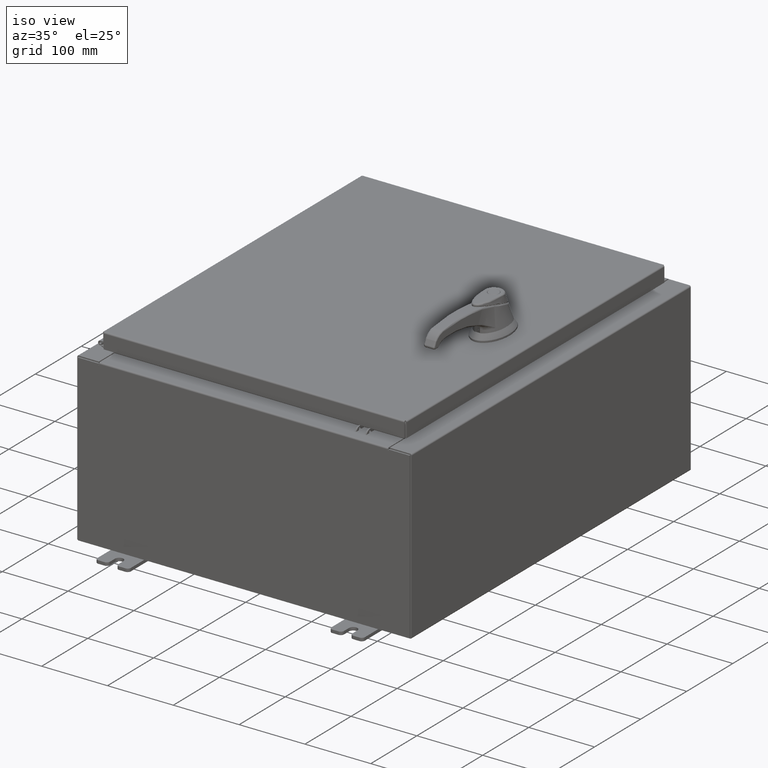
[diagram: clean part render]
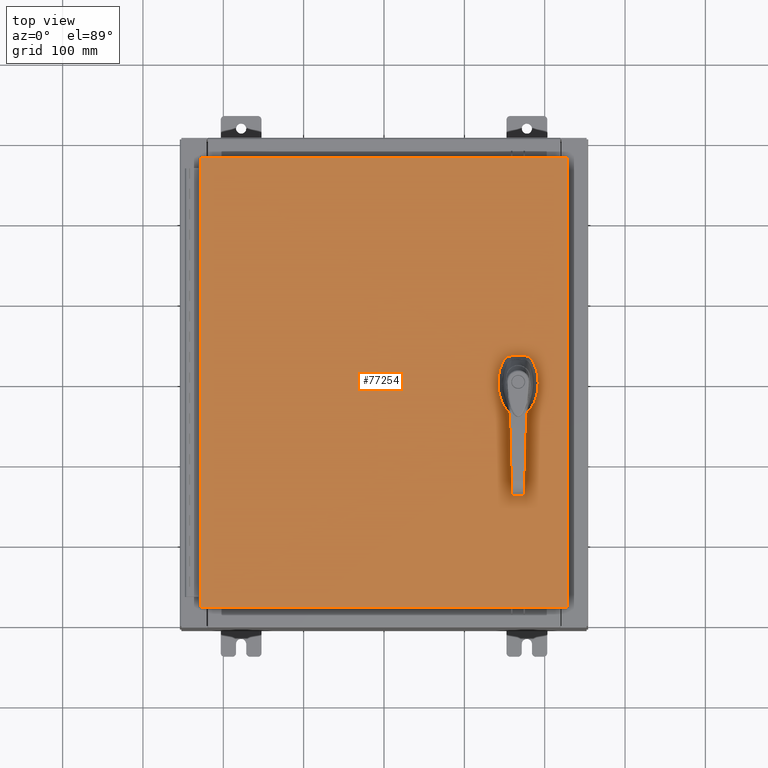
[diagram: tour spotlight — one face highlighted and labeled with its STEP entity id]
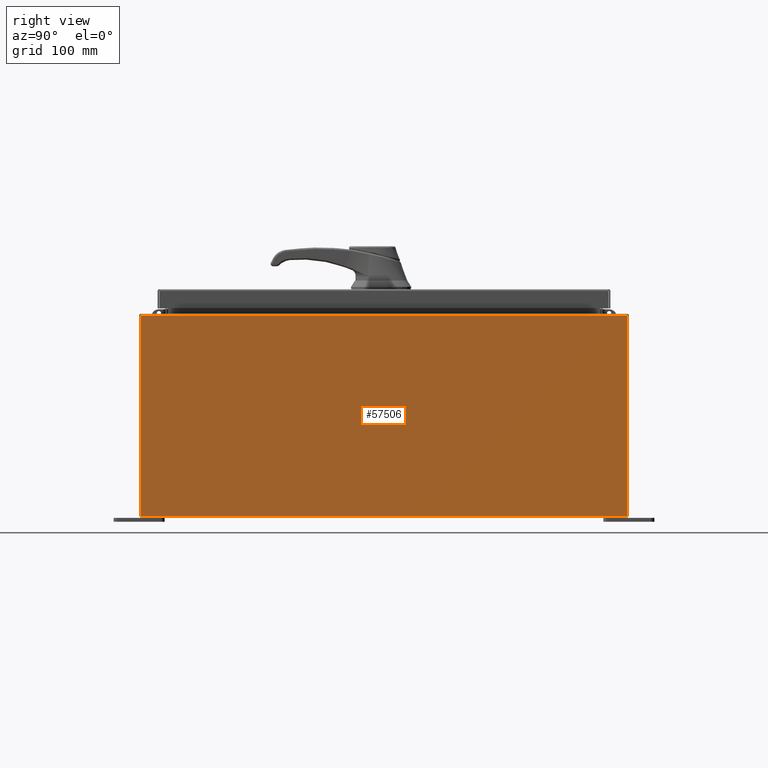
[diagram: tour spotlight — one face highlighted and labeled with its STEP entity id]
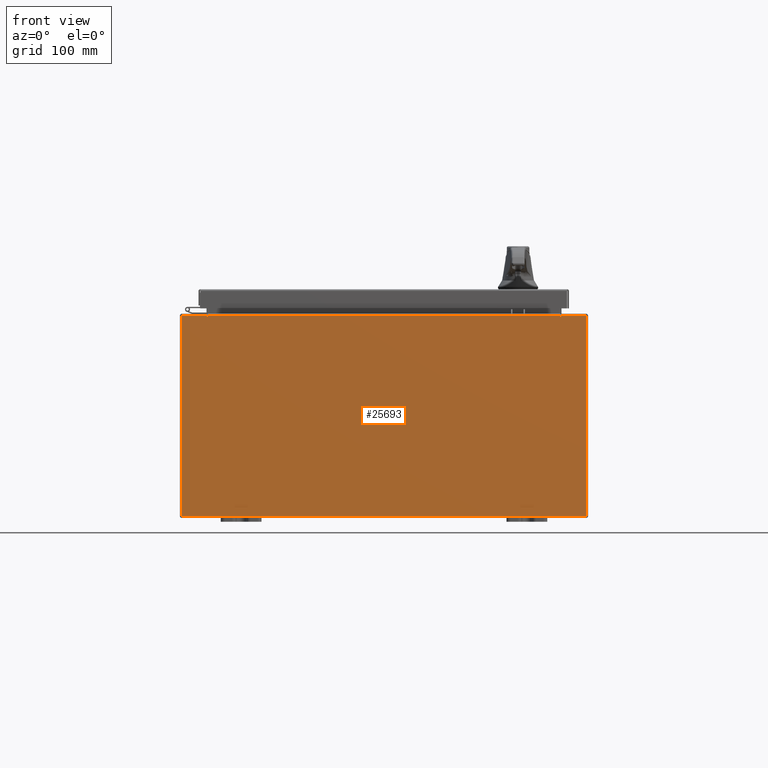
[diagram: tour spotlight — one face highlighted and labeled with its STEP entity id]
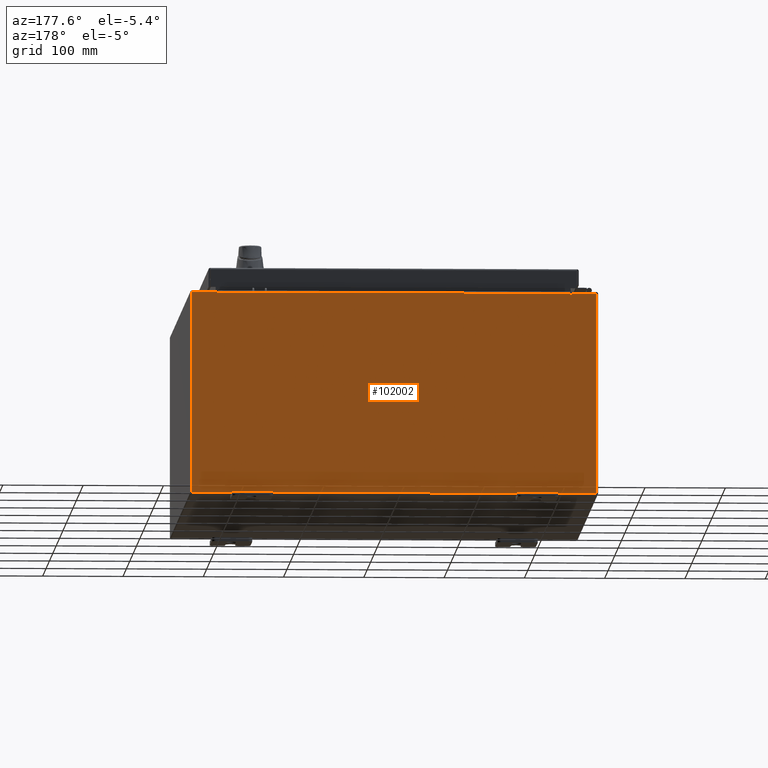
[diagram: tour spotlight — one face highlighted and labeled with its STEP entity id]
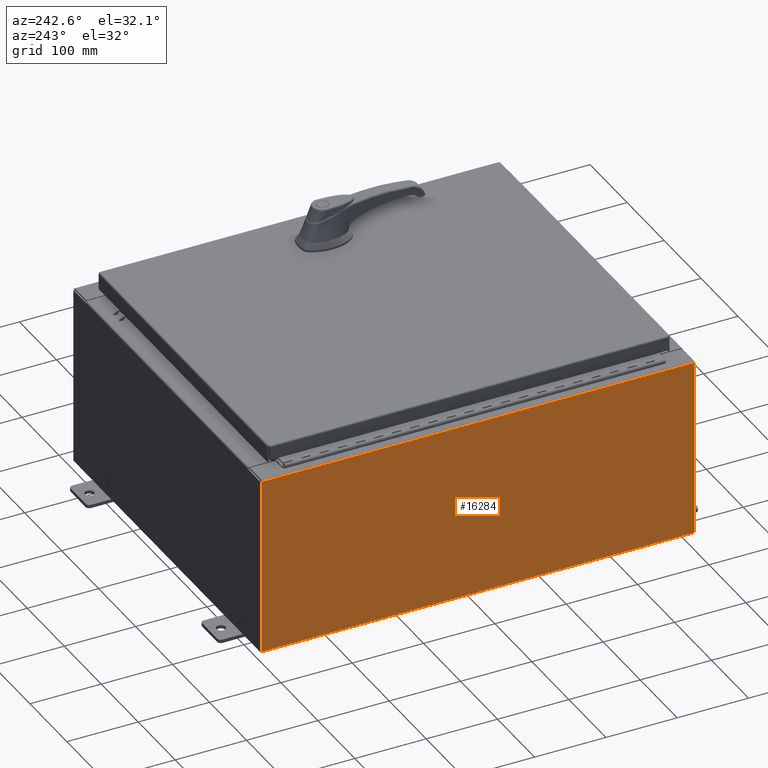
[diagram: tour spotlight — one face highlighted and labeled with its STEP entity id]
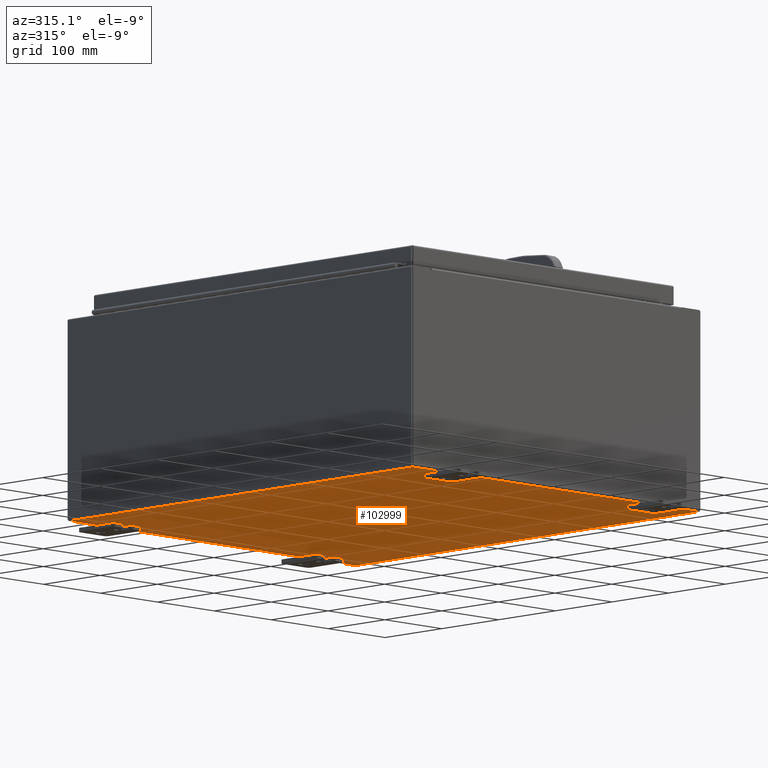
[diagram: tour spotlight — one face highlighted and labeled with its STEP entity id]
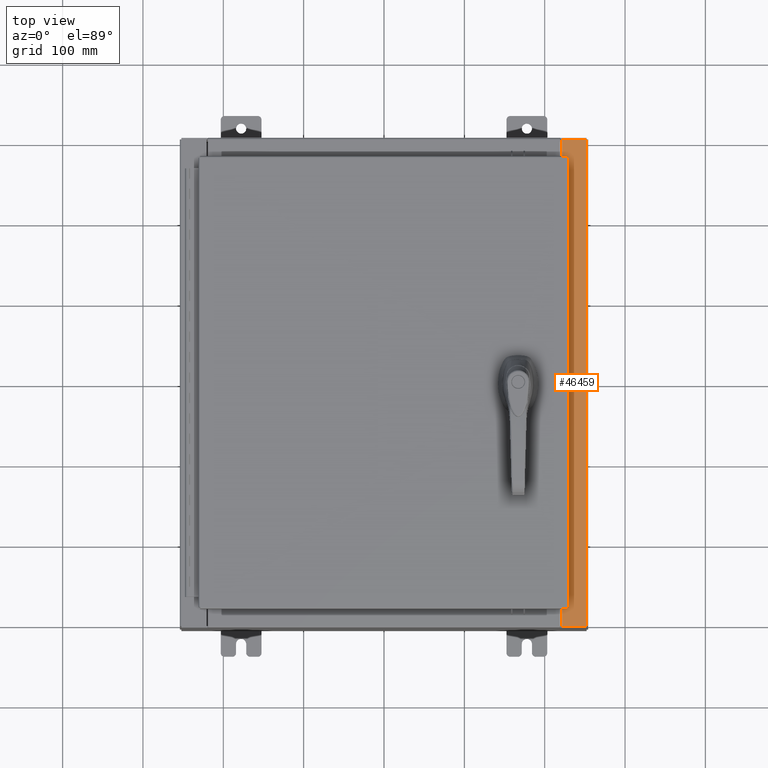
[diagram: tour spotlight — one face highlighted and labeled with its STEP entity id]
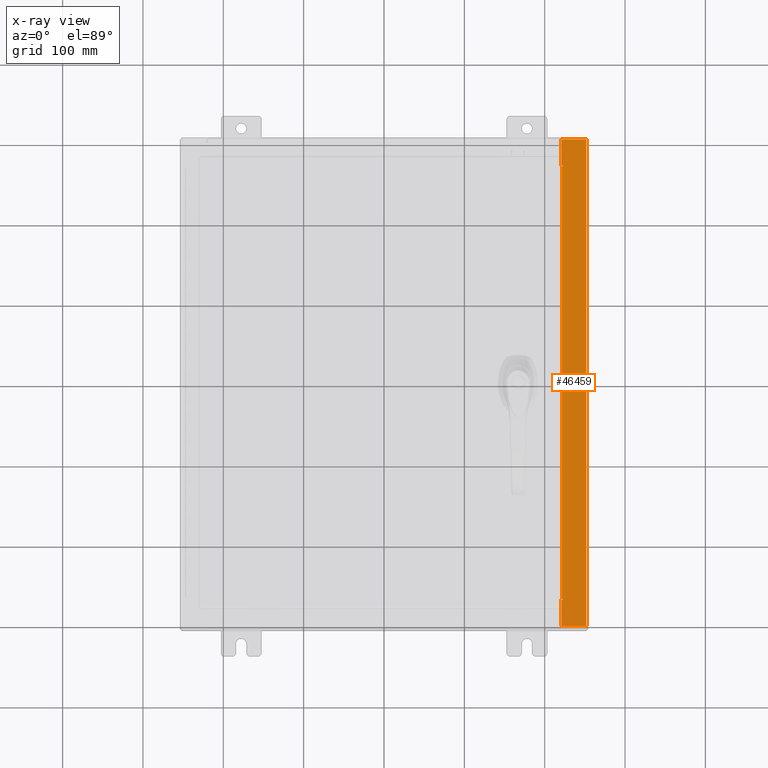
[diagram: x-ray of the same camera — body ghosted, this tour face saturated]
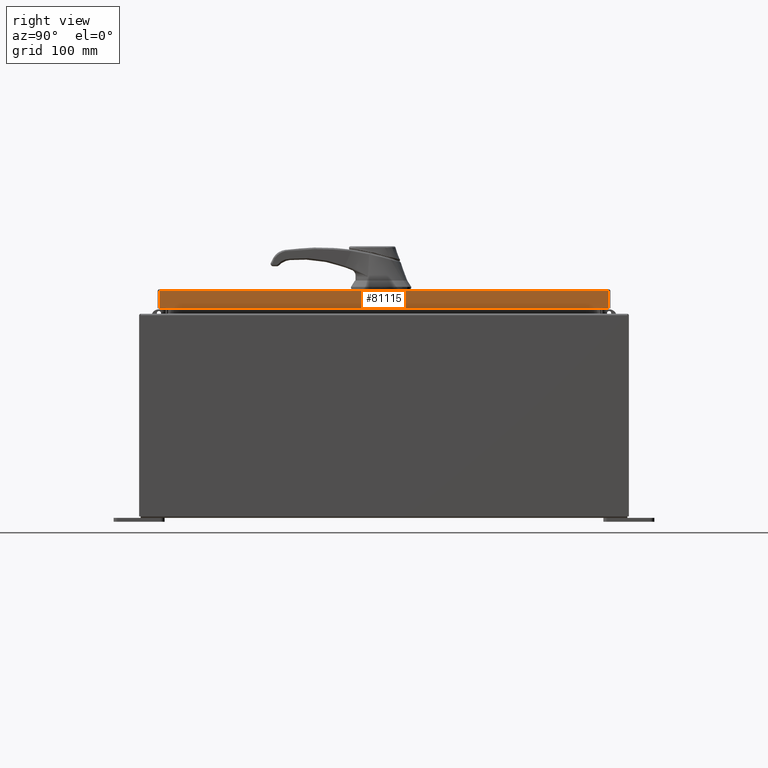
[diagram: tour spotlight — one face highlighted and labeled with its STEP entity id]
A machine part: a face-by-face anatomy tour. The part has 2412 B-rep faces; the first image is the clean iso view, then the 8 largest visible faces are spotlighted one at a time (largest first), each with its STEP entity span.

Face 1 — top view, entity #77254. In plain terms, the highlighted planar face has unit normal (0, 0, -1).
Definition (entity closure, byte-faithful):
#35 = DIRECTION ( 'NONE',  ( 1.000000000000000000, 0.0000000000000000000, 0.0000000000000000000 ) ) ;
#329 = CIRCLE ( 'NONE', #53628, 0.4499999999999156900 ) ;
#671 = EDGE_CURVE ( 'NONE', #4082, #47162, #64494, .T. ) ;
#3072 = ORIENTED_EDGE ( 'NONE', *, *, #59190, .F. ) ;
#4082 = VERTEX_POINT ( 'NONE', #43702 ) ;
#5773 = CARTESIAN_POINT ( 'NONE',  ( 6.377772629243688500, 0.4029999999999252000, 0.0000000000000000000 ) ) ;
#5911 = CARTESIAN_POINT ( 'NONE',  ( 6.749499999999998500, -1.338000000000000100, 0.0000000000000000000 ) ) ;
#7752 = EDGE_CURVE ( 'NONE', #74062, #84587, #53035, .T. ) ;
#8750 = DIRECTION ( 'NONE',  ( -1.000000000000000000, 0.0000000000000000000, 0.0000000000000000000 ) ) ;
#9817 = DIRECTION ( 'NONE',  ( 1.000000000000000000, 0.0000000000000000000, 0.0000000000000000000 ) ) ;
#9964 = CARTESIAN_POINT ( 'NONE',  ( 6.577999999999998500, -1.338000000000000100, 0.0000000000000000000 ) ) ;
#10361 = VECTOR ( 'NONE', #20219, 39.37007874015748100 ) ;
#11484 = VECTOR ( 'NONE', #8750, 39.37007874015748100 ) ;
#11753 = ORIENTED_EDGE ( 'NONE', *, *, #97226, .T. ) ;
#12546 = DIRECTION ( 'NONE',  ( 0.0000000000000000000, 1.000000000000000000, 0.0000000000000000000 ) ) ;
#12658 = VECTOR ( 'NONE', #27191, 39.37007874015748100 ) ;
#13986 = EDGE_LOOP ( 'NONE', ( #11753, #92557, #30170, #97255, #29925, #59812, #25730, #43726 ) ) ;
#14292 = VERTEX_POINT ( 'NONE', #17845 ) ;
#15350 = LINE ( 'NONE', #70741, #12658 ) ;
#17845 = CARTESIAN_POINT ( 'NONE',  ( 6.406499999999998500, -1.338000000000000100, 0.0000000000000000000 ) ) ;
#18510 = VERTEX_POINT ( 'NONE', #29037 ) ;
#18661 = DIRECTION ( 'NONE',  ( 1.000000000000000000, 0.0000000000000000000, 0.0000000000000000000 ) ) ;
#18869 = EDGE_CURVE ( 'NONE', #34440, #18510, #76767, .T. ) ;
#19389 = VECTOR ( 'NONE', #81176, 39.37007874015748100 ) ;
#20219 = DIRECTION ( 'NONE',  ( 0.0000000000000000000, -1.000000000000000000, 0.0000000000000000000 ) ) ;
#20584 = CARTESIAN_POINT ( 'NONE',  ( -8.990299999999999500, 11.00630000000000100, -2.048885995248197400E-016 ) ) ;
#20913 = VERTEX_POINT ( 'NONE', #43452 ) ;
#22100 = VERTEX_POINT ( 'NONE', #102877 ) ;
#22327 = EDGE_CURVE ( 'NONE', #105996, #111322, #65459, .T. ) ;
#22703 = CARTESIAN_POINT ( 'NONE',  ( 6.175000000000072700, 0.2002273707563079800, 0.0000000000000000000 ) ) ;
#22837 = ORIENTED_EDGE ( 'NONE', *, *, #18869, .T. ) ;
#23732 = AXIS2_PLACEMENT_3D ( 'NONE', #35970, #105298, #53369 ) ;
#24660 = CIRCLE ( 'NONE', #101564, 0.1715000000000000700 ) ;
#24997 = VERTEX_POINT ( 'NONE', #65575 ) ;
#25730 = ORIENTED_EDGE ( 'NONE', *, *, #48371, .F. ) ;
#27191 = DIRECTION ( 'NONE',  ( 0.0000000000000000000, -1.000000000000000000, 0.0000000000000000000 ) ) ;
#29037 = CARTESIAN_POINT ( 'NONE',  ( 8.990299999999997700, -11.00630000000000000, -2.219626494852214000E-016 ) ) ;
#29925 = ORIENTED_EDGE ( 'NONE', *, *, #22327, .F. ) ;
#30170 = ORIENTED_EDGE ( 'NONE', *, *, #78289, .F. ) ;
#30302 = FACE_OUTER_BOUND ( 'NONE', #57434, .T. ) ;
#32629 = EDGE_CURVE ( 'NONE', #18510, #24997, #54844, .T. ) ;
#33025 = DIRECTION ( 'NONE',  ( -0.0000000000000000000, 0.0000000000000000000, 1.000000000000000000 ) ) ;
#33143 = ORIENTED_EDGE ( 'NONE', *, *, #92904, .T. ) ;
#34329 = CARTESIAN_POINT ( 'NONE',  ( 6.577999999999998500, 0.0000000000000000000, 0.0000000000000000000 ) ) ;
#34440 = VERTEX_POINT ( 'NONE', #44446 ) ;
#34564 = VECTOR ( 'NONE', #12546, 39.37007874015748100 ) ;
#35102 = CIRCLE ( 'NONE', #75811, 0.1715000000000000700 ) ;
#35650 = CARTESIAN_POINT ( 'NONE',  ( 6.577999999999998500, -1.338000000000000100, 0.0000000000000000000 ) ) ;
#35970 = CARTESIAN_POINT ( 'NONE',  ( 0.0000000000000000000, 0.0000000000000000000, 0.0000000000000000000 ) ) ;
#37944 = DIRECTION ( 'NONE',  ( -0.0000000000000000000, 0.0000000000000000000, 1.000000000000000000 ) ) ;
#38689 = ORIENTED_EDGE ( 'NONE', *, *, #32629, .T. ) ;
#39657 = LINE ( 'NONE', #45626, #108763 ) ;
#41473 = AXIS2_PLACEMENT_3D ( 'NONE', #65270, #33025, #9817 ) ;
#41973 = CARTESIAN_POINT ( 'NONE',  ( 6.778227370756308500, 0.4029999999999252000, 0.0000000000000000000 ) ) ;
#43053 = DIRECTION ( 'NONE',  ( 1.000000000000000000, 0.0000000000000000000, 0.0000000000000000000 ) ) ;
#43452 = CARTESIAN_POINT ( 'NONE',  ( 6.377772629243688500, -0.4029999999999252000, 0.0000000000000000000 ) ) ;
#43702 = CARTESIAN_POINT ( 'NONE',  ( 6.778227370756308500, -0.4029999999999252000, 0.0000000000000000000 ) ) ;
#43726 = ORIENTED_EDGE ( 'NONE', *, *, #7752, .F. ) ;
#44350 = DIRECTION ( 'NONE',  ( 1.000000000000000000, 0.0000000000000000000, 0.0000000000000000000 ) ) ;
#44446 = CARTESIAN_POINT ( 'NONE',  ( -8.990300000000001300, -11.00630000000000100, 8.878505979408856000E-016 ) ) ;
#45626 = CARTESIAN_POINT ( 'NONE',  ( 0.0000000000000000000, -0.4029999999999252000, 0.0000000000000000000 ) ) ;
#47162 = VERTEX_POINT ( 'NONE', #104127 ) ;
#48371 = EDGE_CURVE ( 'NONE', #84587, #61767, #80604, .T. ) ;
#48386 = VECTOR ( 'NONE', #59909, 39.37007874015748100 ) ;
#51403 = EDGE_CURVE ( 'NONE', #111322, #20913, #61572, .T. ) ;
#51907 = DIRECTION ( 'NONE',  ( -0.0000000000000000000, 0.0000000000000000000, 1.000000000000000000 ) ) ;
#53035 = CIRCLE ( 'NONE', #78793, 0.4499999999999156900 ) ;
#53364 = FACE_BOUND ( 'NONE', #13986, .T. ) ;
#53369 = DIRECTION ( 'NONE',  ( -1.000000000000000000, 0.0000000000000000000, -0.0000000000000000000 ) ) ;
#53628 = AXIS2_PLACEMENT_3D ( 'NONE', #89836, #37944, #98594 ) ;
#54677 = CARTESIAN_POINT ( 'NONE',  ( 6.175000000000072700, 0.0000000000000000000, 0.0000000000000000000 ) ) ;
#54844 = LINE ( 'NONE', #97473, #34564 ) ;
#57434 = EDGE_LOOP ( 'NONE', ( #22837, #38689, #33143, #83363 ) ) ;
#58901 = CARTESIAN_POINT ( 'NONE',  ( -8.990300000000001300, -11.00630000000000100, 8.878505979408856000E-016 ) ) ;
#59190 = EDGE_CURVE ( 'NONE', #14292, #77751, #35102, .T. ) ;
#59812 = ORIENTED_EDGE ( 'NONE', *, *, #98546, .F. ) ;
#59909 = DIRECTION ( 'NONE',  ( -1.000000000000000000, -0.0000000000000000000, -0.0000000000000000000 ) ) ;
#61572 = CIRCLE ( 'NONE', #83474, 0.4499999999999156900 ) ;
#61767 = VERTEX_POINT ( 'NONE', #5773 ) ;
#64494 = CIRCLE ( 'NONE', #41473, 0.4499999999999156900 ) ;
#65270 = CARTESIAN_POINT ( 'NONE',  ( 6.577999999999998500, 0.0000000000000000000, 0.0000000000000000000 ) ) ;
#65459 = LINE ( 'NONE', #54677, #19389 ) ;
#65575 = CARTESIAN_POINT ( 'NONE',  ( 8.990299999999999500, 11.00630000000000000, -2.048885995248197400E-016 ) ) ;
#68801 = LINE ( 'NONE', #111817, #48386 ) ;
#70566 = DIRECTION ( 'NONE',  ( -0.0000000000000000000, 0.0000000000000000000, 1.000000000000000000 ) ) ;
#70741 = CARTESIAN_POINT ( 'NONE',  ( 6.980999999999924400, 0.0000000000000000000, 0.0000000000000000000 ) ) ;
#74062 = VERTEX_POINT ( 'NONE', #74370 ) ;
#74370 = CARTESIAN_POINT ( 'NONE',  ( 6.980999999999924400, 0.2002273707563080300, 0.0000000000000000000 ) ) ;
#75811 = AXIS2_PLACEMENT_3D ( 'NONE', #9964, #70566, #18661 ) ;
#76767 = LINE ( 'NONE', #58901, #94438 ) ;
#77254 = ADVANCED_FACE ( 'NONE', ( #99439, #30302, #53364 ), #79120, .F. ) ;
#77751 = VERTEX_POINT ( 'NONE', #5911 ) ;
#78289 = EDGE_CURVE ( 'NONE', #20913, #4082, #39657, .T. ) ;
#78793 = AXIS2_PLACEMENT_3D ( 'NONE', #103832, #51907, #35 ) ;
#79120 = PLANE ( 'NONE',  #23732 ) ;
#80571 = EDGE_CURVE ( 'NONE', #77751, #14292, #24660, .T. ) ;
#80604 = LINE ( 'NONE', #94779, #11484 ) ;
#81176 = DIRECTION ( 'NONE',  ( 0.0000000000000000000, -1.000000000000000000, 0.0000000000000000000 ) ) ;
#81835 = ORIENTED_EDGE ( 'NONE', *, *, #80571, .F. ) ;
#83363 = ORIENTED_EDGE ( 'NONE', *, *, #87092, .T. ) ;
#83474 = AXIS2_PLACEMENT_3D ( 'NONE', #34329, #94970, #43053 ) ;
#84587 = VERTEX_POINT ( 'NONE', #41973 ) ;
#87092 = EDGE_CURVE ( 'NONE', #22100, #34440, #99813, .T. ) ;
#89447 = CARTESIAN_POINT ( 'NONE',  ( 6.175000000000072700, -0.2002273707563079800, 0.0000000000000000000 ) ) ;
#89836 = CARTESIAN_POINT ( 'NONE',  ( 6.577999999999998500, 0.0000000000000000000, 0.0000000000000000000 ) ) ;
#92557 = ORIENTED_EDGE ( 'NONE', *, *, #671, .F. ) ;
#92904 = EDGE_CURVE ( 'NONE', #24997, #22100, #68801, .T. ) ;
#93410 = DIRECTION ( 'NONE',  ( 1.000000000000000000, -0.0000000000000000000, -0.0000000000000000000 ) ) ;
#94438 = VECTOR ( 'NONE', #93410, 39.37007874015748100 ) ;
#94779 = CARTESIAN_POINT ( 'NONE',  ( 0.0000000000000000000, 0.4029999999999252000, 0.0000000000000000000 ) ) ;
#94970 = DIRECTION ( 'NONE',  ( -0.0000000000000000000, 0.0000000000000000000, 1.000000000000000000 ) ) ;
#96287 = DIRECTION ( 'NONE',  ( -0.0000000000000000000, 0.0000000000000000000, 1.000000000000000000 ) ) ;
#97226 = EDGE_CURVE ( 'NONE', #74062, #47162, #15350, .T. ) ;
#97255 = ORIENTED_EDGE ( 'NONE', *, *, #51403, .F. ) ;
#97473 = CARTESIAN_POINT ( 'NONE',  ( 8.990299999999997700, -11.00630000000000000, -2.219626494852214000E-016 ) ) ;
#97554 = DIRECTION ( 'NONE',  ( 1.000000000000000000, 0.0000000000000000000, 0.0000000000000000000 ) ) ;
#98546 = EDGE_CURVE ( 'NONE', #61767, #105996, #329, .T. ) ;
#98594 = DIRECTION ( 'NONE',  ( 1.000000000000000000, 0.0000000000000000000, 0.0000000000000000000 ) ) ;
#99439 = FACE_BOUND ( 'NONE', #108105, .T. ) ;
#99813 = LINE ( 'NONE', #20584, #10361 ) ;
#101564 = AXIS2_PLACEMENT_3D ( 'NONE', #35650, #96287, #44350 ) ;
#102877 = CARTESIAN_POINT ( 'NONE',  ( -8.990299999999999500, 11.00630000000000100, -2.048885995248197400E-016 ) ) ;
#103832 = CARTESIAN_POINT ( 'NONE',  ( 6.577999999999998500, 0.0000000000000000000, 0.0000000000000000000 ) ) ;
#104127 = CARTESIAN_POINT ( 'NONE',  ( 6.980999999999924400, -0.2002273707563079800, 0.0000000000000000000 ) ) ;
#105298 = DIRECTION ( 'NONE',  ( 0.0000000000000000000, 0.0000000000000000000, -1.000000000000000000 ) ) ;
#105996 = VERTEX_POINT ( 'NONE', #22703 ) ;
#108105 = EDGE_LOOP ( 'NONE', ( #81835, #3072 ) ) ;
#108763 = VECTOR ( 'NONE', #97554, 39.37007874015748100 ) ;
#111322 = VERTEX_POINT ( 'NONE', #89447 ) ;
#111817 = CARTESIAN_POINT ( 'NONE',  ( 8.990299999999999500, 11.00630000000000000, -2.048885995248197400E-016 ) ) ;

Face 2 — right view, entity #57506. In plain terms, the highlighted planar face has unit normal (-1, 0, 0).
Definition (entity closure, byte-faithful):
#311 = VECTOR ( 'NONE', #20708, 39.37007874015748100 ) ;
#4043 = CARTESIAN_POINT ( 'NONE',  ( 10.00000000000000000, 11.92529999999999800, 0.01299999999999984700 ) ) ;
#6264 = CARTESIAN_POINT ( 'NONE',  ( 10.00000000000000000, 0.0000000000000000000, -3.549164226462045900E-014 ) ) ;
#20708 = DIRECTION ( 'NONE',  ( -0.0000000000000000000, -1.000000000000000000, -0.0000000000000000000 ) ) ;
#23564 = VECTOR ( 'NONE', #69394, 39.37007874015748100 ) ;
#24222 = CARTESIAN_POINT ( 'NONE',  ( 10.00000000000000000, -11.92530000000000000, 0.01299999999999984700 ) ) ;
#29381 = ORIENTED_EDGE ( 'NONE', *, *, #35046, .T. ) ;
#32430 = PLANE ( 'NONE',  #35887 ) ;
#32556 = FACE_OUTER_BOUND ( 'NONE', #101403, .T. ) ;
#34530 = CARTESIAN_POINT ( 'NONE',  ( 10.00000000000000000, 11.92530000000000000, -3.286577851208143900E-014 ) ) ;
#35046 = EDGE_CURVE ( 'NONE', #106304, #61510, #49308, .T. ) ;
#35887 = AXIS2_PLACEMENT_3D ( 'NONE', #6264, #41124, #101746 ) ;
#38835 = EDGE_CURVE ( 'NONE', #50610, #102196, #70944, .T. ) ;
#41124 = DIRECTION ( 'NONE',  ( -1.000000000000000000, 0.0000000000000000000, 3.523082860860887800E-015 ) ) ;
#43656 = LINE ( 'NONE', #24222, #311 ) ;
#43986 = LINE ( 'NONE', #45503, #104993 ) ;
#45503 = CARTESIAN_POINT ( 'NONE',  ( 10.00000000000003600, 11.92530000000000000, 9.837599999999994800 ) ) ;
#49308 = LINE ( 'NONE', #34530, #23564 ) ;
#50610 = VERTEX_POINT ( 'NONE', #102289 ) ;
#55394 = EDGE_CURVE ( 'NONE', #106304, #102196, #43656, .T. ) ;
#57506 = ADVANCED_FACE ( 'NONE', ( #32556 ), #32430, .F. ) ;
#61510 = VERTEX_POINT ( 'NONE', #97921 ) ;
#62781 = VECTOR ( 'NONE', #106353, 39.37007874015748100 ) ;
#64045 = EDGE_CURVE ( 'NONE', #61510, #50610, #43986, .T. ) ;
#69394 = DIRECTION ( 'NONE',  ( 3.523082860860888200E-015, -2.201926788038055100E-016, 1.000000000000000000 ) ) ;
#70944 = LINE ( 'NONE', #88932, #62781 ) ;
#88932 = CARTESIAN_POINT ( 'NONE',  ( 10.00000000000000000, -11.92530000000000000, -3.549164226462045900E-014 ) ) ;
#97921 = CARTESIAN_POINT ( 'NONE',  ( 10.00000000000003600, 11.92529999999999800, 9.837599999999994800 ) ) ;
#99590 = ORIENTED_EDGE ( 'NONE', *, *, #64045, .T. ) ;
#100924 = CARTESIAN_POINT ( 'NONE',  ( 10.00000000000000000, -11.92530000000000000, 0.01299999999999984300 ) ) ;
#101403 = EDGE_LOOP ( 'NONE', ( #99590, #102232, #107310, #29381 ) ) ;
#101746 = DIRECTION ( 'NONE',  ( 3.523082860860887800E-015, 0.0000000000000000000, 1.000000000000000000 ) ) ;
#102196 = VERTEX_POINT ( 'NONE', #100924 ) ;
#102232 = ORIENTED_EDGE ( 'NONE', *, *, #38835, .T. ) ;
#102289 = CARTESIAN_POINT ( 'NONE',  ( 10.00000000000003600, -11.92530000000000000, 9.837600000000001900 ) ) ;
#104993 = VECTOR ( 'NONE', #106127, 39.37007874015748100 ) ;
#106127 = DIRECTION ( 'NONE',  ( -0.0000000000000000000, -1.000000000000000000, -0.0000000000000000000 ) ) ;
#106304 = VERTEX_POINT ( 'NONE', #4043 ) ;
#106353 = DIRECTION ( 'NONE',  ( -3.523082860860888200E-015, 0.0000000000000000000, -1.000000000000000000 ) ) ;
#107310 = ORIENTED_EDGE ( 'NONE', *, *, #55394, .F. ) ;

Face 3 — front view, entity #25693. In plain terms, the highlighted planar face has unit normal (-0, 1, -0).
Definition (entity closure, byte-faithful):
#3022 = EDGE_CURVE ( 'NONE', #18241, #20974, #103577, .T. ) ;
#3910 = EDGE_CURVE ( 'NONE', #9647, #93030, #13933, .T. ) ;
#4269 = CARTESIAN_POINT ( 'NONE',  ( -9.925300000000000000, 0.0000000000000000000, 4.925300000000000000 ) ) ;
#4590 = DIRECTION ( 'NONE',  ( -6.510859170600007400E-014, 0.0000000000000000000, -1.000000000000000000 ) ) ;
#4808 = DIRECTION ( 'NONE',  ( 0.0000000000000000000, 0.0000000000000000000, -1.000000000000000000 ) ) ;
#5575 = PLANE ( 'NONE',  #17502 ) ;
#7380 = CARTESIAN_POINT ( 'NONE',  ( 9.925300000000000000, 0.0000000000000000000, 4.925300000000000000 ) ) ;
#7425 = CARTESIAN_POINT ( 'NONE',  ( -8.637199999999996400, -0.0000000000000000000, 0.0000000000000000000 ) ) ;
#8663 = CARTESIAN_POINT ( 'NONE',  ( -8.637199999999996400, -7.171100983368691200E-016, 4.912300000000000100 ) ) ;
#8973 = ORIENTED_EDGE ( 'NONE', *, *, #99301, .T. ) ;
#9647 = VERTEX_POINT ( 'NONE', #91687 ) ;
#10497 = VERTEX_POINT ( 'NONE', #76220 ) ;
#12229 = DIRECTION ( 'NONE',  ( -0.0000000000000000000, -0.0000000000000000000, 1.000000000000000000 ) ) ;
#12452 = DIRECTION ( 'NONE',  ( 1.000000000000000000, 0.0000000000000000000, 0.0000000000000000000 ) ) ;
#13324 = LINE ( 'NONE', #4269, #39106 ) ;
#13933 = LINE ( 'NONE', #20983, #103468 ) ;
#14279 = DIRECTION ( 'NONE',  ( 0.0000000000000000000, -0.0000000000000000000, -1.000000000000000000 ) ) ;
#15303 = CARTESIAN_POINT ( 'NONE',  ( -9.925300000000000000, 0.0000000000000000000, 4.925300000000000000 ) ) ;
#17502 = AXIS2_PLACEMENT_3D ( 'NONE', #108993, #66196, #14279 ) ;
#18241 = VERTEX_POINT ( 'NONE', #25267 ) ;
#20974 = VERTEX_POINT ( 'NONE', #87404 ) ;
#20983 = CARTESIAN_POINT ( 'NONE',  ( 8.637200000000000000, 0.0000000000000000000, 0.0000000000000000000 ) ) ;
#21153 = ORIENTED_EDGE ( 'NONE', *, *, #49458, .F. ) ;
#21269 = CARTESIAN_POINT ( 'NONE',  ( -9.925300000000000000, 0.0000000000000000000, 4.925300000000000000 ) ) ;
#21619 = VECTOR ( 'NONE', #75921, 39.37007874015748100 ) ;
#21783 = CARTESIAN_POINT ( 'NONE',  ( 8.655875000000000000, 0.0000000000000000000, 4.874950000000000100 ) ) ;
#23817 = VECTOR ( 'NONE', #104178, 39.37007874015748100 ) ;
#25101 = VECTOR ( 'NONE', #4590, 39.37007874015748100 ) ;
#25267 = CARTESIAN_POINT ( 'NONE',  ( 9.925300000000000000, 0.0000000000000000000, 4.925300000000000000 ) ) ;
#25693 = ADVANCED_FACE ( 'NONE', ( #53023 ), #5575, .F. ) ;
#26683 = VECTOR ( 'NONE', #42263, 39.37007874015748100 ) ;
#27196 = AXIS2_PLACEMENT_3D ( 'NONE', #21783, #82413, #30522 ) ;
#27946 = ORIENTED_EDGE ( 'NONE', *, *, #3910, .F. ) ;
#29276 = EDGE_CURVE ( 'NONE', #34860, #9647, #44424, .T. ) ;
#30522 = DIRECTION ( 'NONE',  ( 0.0000000000000000000, 0.0000000000000000000, -1.000000000000000000 ) ) ;
#31798 = ORIENTED_EDGE ( 'NONE', *, *, #84524, .F. ) ;
#32249 = VERTEX_POINT ( 'NONE', #69289 ) ;
#32527 = CARTESIAN_POINT ( 'NONE',  ( -8.674549999999996400, -0.0000000000000000000, 0.0000000000000000000 ) ) ;
#34860 = VERTEX_POINT ( 'NONE', #39823 ) ;
#34971 = DIRECTION ( 'NONE',  ( 0.0000000000000000000, 0.0000000000000000000, -1.000000000000000000 ) ) ;
#37443 = VERTEX_POINT ( 'NONE', #89942 ) ;
#38062 = EDGE_CURVE ( 'NONE', #10497, #37443, #77786, .T. ) ;
#39073 = EDGE_LOOP ( 'NONE', ( #31798, #89995, #63706, #81802, #27946, #95822, #21153, #8973, #91367, #46994, #64507, #49107 ) ) ;
#39106 = VECTOR ( 'NONE', #12229, 39.37007874015748100 ) ;
#39823 = CARTESIAN_POINT ( 'NONE',  ( 8.674550000000000000, 0.0000000000000000000, 4.874950000000000100 ) ) ;
#42263 = DIRECTION ( 'NONE',  ( 0.0000000000000000000, 0.0000000000000000000, -1.000000000000000000 ) ) ;
#44424 = CIRCLE ( 'NONE', #27196, 0.01867500000000003900 ) ;
#46994 = ORIENTED_EDGE ( 'NONE', *, *, #111902, .T. ) ;
#48937 = CARTESIAN_POINT ( 'NONE',  ( 8.674550000000001800, 0.0000000000000000000, 4.925300000000000000 ) ) ;
#48943 = VECTOR ( 'NONE', #81872, 39.37007874015748100 ) ;
#49107 = ORIENTED_EDGE ( 'NONE', *, *, #83354, .T. ) ;
#49458 = EDGE_CURVE ( 'NONE', #66870, #34860, #50844, .T. ) ;
#49672 = LINE ( 'NONE', #7425, #26683 ) ;
#50844 = LINE ( 'NONE', #108377, #25101 ) ;
#51329 = VECTOR ( 'NONE', #110930, 39.37007874015748100 ) ;
#51708 = LINE ( 'NONE', #21269, #48943 ) ;
#53023 = FACE_OUTER_BOUND ( 'NONE', #39073, .T. ) ;
#53882 = VERTEX_POINT ( 'NONE', #8663 ) ;
#55632 = CARTESIAN_POINT ( 'NONE',  ( -8.637200000000000000, -7.171100983368691200E-016, 4.912300000000000100 ) ) ;
#56708 = DIRECTION ( 'NONE',  ( -0.0000000000000000000, 1.000000000000000000, -0.0000000000000000000 ) ) ;
#62892 = VECTOR ( 'NONE', #34971, 39.37007874015748100 ) ;
#63357 = VECTOR ( 'NONE', #12452, 39.37007874015748100 ) ;
#63706 = ORIENTED_EDGE ( 'NONE', *, *, #86709, .F. ) ;
#64507 = ORIENTED_EDGE ( 'NONE', *, *, #71234, .T. ) ;
#66196 = DIRECTION ( 'NONE',  ( 0.0000000000000000000, -1.000000000000000000, 0.0000000000000000000 ) ) ;
#66870 = VERTEX_POINT ( 'NONE', #48937 ) ;
#69289 = CARTESIAN_POINT ( 'NONE',  ( -8.674549999999996400, 0.0000000000000000000, 4.925300000000000000 ) ) ;
#70084 = CARTESIAN_POINT ( 'NONE',  ( -9.925300000000000000, 0.0000000000000000000, -4.925300000000000000 ) ) ;
#71234 = EDGE_CURVE ( 'NONE', #82317, #71831, #13324, .T. ) ;
#71831 = VERTEX_POINT ( 'NONE', #88200 ) ;
#75921 = DIRECTION ( 'NONE',  ( 1.000000000000000000, 0.0000000000000000000, 0.0000000000000000000 ) ) ;
#76220 = CARTESIAN_POINT ( 'NONE',  ( -8.637199999999996400, -0.0000000000000000000, 4.874950000000000100 ) ) ;
#77075 = LINE ( 'NONE', #32527, #51329 ) ;
#77786 = CIRCLE ( 'NONE', #92264, 0.01867500000000003900 ) ;
#81802 = ORIENTED_EDGE ( 'NONE', *, *, #108413, .T. ) ;
#81872 = DIRECTION ( 'NONE',  ( 1.000000000000000000, 0.0000000000000000000, 0.0000000000000000000 ) ) ;
#82317 = VERTEX_POINT ( 'NONE', #99612 ) ;
#82413 = DIRECTION ( 'NONE',  ( -0.0000000000000000000, 1.000000000000000000, -0.0000000000000000000 ) ) ;
#83354 = EDGE_CURVE ( 'NONE', #71831, #32249, #105685, .T. ) ;
#84524 = EDGE_CURVE ( 'NONE', #37443, #32249, #77075, .T. ) ;
#86425 = LINE ( 'NONE', #55632, #63357 ) ;
#86431 = CARTESIAN_POINT ( 'NONE',  ( 8.637200000000000000, 0.0000000000000000000, 4.912300000000000100 ) ) ;
#86709 = EDGE_CURVE ( 'NONE', #53882, #10497, #49672, .T. ) ;
#87404 = CARTESIAN_POINT ( 'NONE',  ( 9.925300000000000000, 0.0000000000000000000, -4.925300000000000000 ) ) ;
#88200 = CARTESIAN_POINT ( 'NONE',  ( -9.925300000000000000, 0.0000000000000000000, 4.925300000000000000 ) ) ;
#89942 = CARTESIAN_POINT ( 'NONE',  ( -8.674549999999996400, 0.0000000000000000000, 4.874950000000000100 ) ) ;
#89995 = ORIENTED_EDGE ( 'NONE', *, *, #38062, .F. ) ;
#90212 = LINE ( 'NONE', #70084, #23817 ) ;
#91367 = ORIENTED_EDGE ( 'NONE', *, *, #3022, .T. ) ;
#91687 = CARTESIAN_POINT ( 'NONE',  ( 8.637200000000000000, 0.0000000000000000000, 4.874950000000000100 ) ) ;
#92264 = AXIS2_PLACEMENT_3D ( 'NONE', #108589, #56708, #4808 ) ;
#93030 = VERTEX_POINT ( 'NONE', #86431 ) ;
#95822 = ORIENTED_EDGE ( 'NONE', *, *, #29276, .F. ) ;
#99042 = DIRECTION ( 'NONE',  ( 0.0000000000000000000, 0.0000000000000000000, 1.000000000000000000 ) ) ;
#99301 = EDGE_CURVE ( 'NONE', #66870, #18241, #51708, .T. ) ;
#99612 = CARTESIAN_POINT ( 'NONE',  ( -9.925300000000000000, 0.0000000000000000000, -4.925300000000000000 ) ) ;
#103468 = VECTOR ( 'NONE', #99042, 39.37007874015748100 ) ;
#103577 = LINE ( 'NONE', #7380, #62892 ) ;
#104178 = DIRECTION ( 'NONE',  ( -1.000000000000000000, -0.0000000000000000000, -0.0000000000000000000 ) ) ;
#105685 = LINE ( 'NONE', #15303, #21619 ) ;
#108377 = CARTESIAN_POINT ( 'NONE',  ( 8.674549999999683800, -0.0000000000000000000, -5.647877341832623900E-013 ) ) ;
#108413 = EDGE_CURVE ( 'NONE', #53882, #93030, #86425, .T. ) ;
#108589 = CARTESIAN_POINT ( 'NONE',  ( -8.655874999999996400, 0.0000000000000000000, 4.874950000000000100 ) ) ;
#108993 = CARTESIAN_POINT ( 'NONE',  ( 0.0000000000000000000, 0.0000000000000000000, 0.0000000000000000000 ) ) ;
#110930 = DIRECTION ( 'NONE',  ( 0.0000000000000000000, 0.0000000000000000000, 1.000000000000000000 ) ) ;
#111902 = EDGE_CURVE ( 'NONE', #20974, #82317, #90212, .T. ) ;

Face 4 — auxiliary view, entity #102002. In plain terms, the highlighted planar face has unit normal (0, -1, 0).
Definition (entity closure, byte-faithful):
#725 = VECTOR ( 'NONE', #28137, 39.37007874015748100 ) ;
#2314 = VERTEX_POINT ( 'NONE', #71382 ) ;
#3973 = ORIENTED_EDGE ( 'NONE', *, *, #62799, .F. ) ;
#4210 = VERTEX_POINT ( 'NONE', #17089 ) ;
#4289 = VECTOR ( 'NONE', #29985, 39.37007874015748100 ) ;
#6030 = CARTESIAN_POINT ( 'NONE',  ( 8.637200000000000000, 0.0000000000000000000, 4.874950000000000100 ) ) ;
#6697 = CARTESIAN_POINT ( 'NONE',  ( -8.637200000000000000, -7.171100983368691200E-016, 4.912300000000000100 ) ) ;
#6960 = DIRECTION ( 'NONE',  ( 1.000000000000000000, 0.0000000000000000000, 0.0000000000000000000 ) ) ;
#8127 = DIRECTION ( 'NONE',  ( -0.0000000000000000000, 1.000000000000000000, -0.0000000000000000000 ) ) ;
#8499 = EDGE_LOOP ( 'NONE', ( #58909, #56602, #26519, #81944, #3973, #15811, #51832, #21623, #47879, #54963, #91800, #29018 ) ) ;
#9110 = AXIS2_PLACEMENT_3D ( 'NONE', #60044, #8127, #68787 ) ;
#10575 = CIRCLE ( 'NONE', #9110, 0.01867500000000003900 ) ;
#10684 = DIRECTION ( 'NONE',  ( 0.0000000000000000000, 0.0000000000000000000, -1.000000000000000000 ) ) ;
#11581 = VECTOR ( 'NONE', #99885, 39.37007874015748100 ) ;
#13924 = VECTOR ( 'NONE', #108422, 39.37007874015748100 ) ;
#15339 = EDGE_CURVE ( 'NONE', #25754, #100786, #10575, .T. ) ;
#15388 = DIRECTION ( 'NONE',  ( 1.000000000000000000, 0.0000000000000000000, 0.0000000000000000000 ) ) ;
#15811 = ORIENTED_EDGE ( 'NONE', *, *, #42245, .F. ) ;
#17089 = CARTESIAN_POINT ( 'NONE',  ( -9.925300000000000000, 0.0000000000000000000, 4.925300000000000000 ) ) ;
#19169 = DIRECTION ( 'NONE',  ( 0.0000000000000000000, -0.0000000000000000000, -1.000000000000000000 ) ) ;
#19401 = CARTESIAN_POINT ( 'NONE',  ( -9.925300000000000000, 0.0000000000000000000, 4.925300000000000000 ) ) ;
#19425 = VECTOR ( 'NONE', #6960, 39.37007874015748100 ) ;
#20601 = DIRECTION ( 'NONE',  ( -0.0000000000000000000, 1.000000000000000000, -0.0000000000000000000 ) ) ;
#21623 = ORIENTED_EDGE ( 'NONE', *, *, #22442, .T. ) ;
#21801 = CARTESIAN_POINT ( 'NONE',  ( 8.637200000000000000, 0.0000000000000000000, 0.0000000000000000000 ) ) ;
#22110 = LINE ( 'NONE', #67627, #19425 ) ;
#22442 = EDGE_CURVE ( 'NONE', #39931, #89566, #80361, .T. ) ;
#23856 = LINE ( 'NONE', #95219, #90258 ) ;
#24136 = CARTESIAN_POINT ( 'NONE',  ( -8.674549999999996400, 0.0000000000000000000, 4.925300000000000000 ) ) ;
#24190 = CARTESIAN_POINT ( 'NONE',  ( -9.925300000000000000, 0.0000000000000000000, -4.925300000000000000 ) ) ;
#24902 = EDGE_CURVE ( 'NONE', #100786, #64764, #91021, .T. ) ;
#25754 = VERTEX_POINT ( 'NONE', #101432 ) ;
#25766 = AXIS2_PLACEMENT_3D ( 'NONE', #72509, #20601, #81224 ) ;
#26519 = ORIENTED_EDGE ( 'NONE', *, *, #63972, .F. ) ;
#27915 = EDGE_CURVE ( 'NONE', #39931, #42760, #79841, .T. ) ;
#28137 = DIRECTION ( 'NONE',  ( -0.0000000000000000000, -0.0000000000000000000, 1.000000000000000000 ) ) ;
#29018 = ORIENTED_EDGE ( 'NONE', *, *, #34127, .T. ) ;
#29985 = DIRECTION ( 'NONE',  ( 0.0000000000000000000, 0.0000000000000000000, 1.000000000000000000 ) ) ;
#30562 = VERTEX_POINT ( 'NONE', #78629 ) ;
#31143 = CARTESIAN_POINT ( 'NONE',  ( -9.925300000000000000, 0.0000000000000000000, 4.925300000000000000 ) ) ;
#32883 = DIRECTION ( 'NONE',  ( -1.000000000000000000, -0.0000000000000000000, -0.0000000000000000000 ) ) ;
#34127 = EDGE_CURVE ( 'NONE', #4210, #64764, #22110, .T. ) ;
#34661 = LINE ( 'NONE', #21801, #11581 ) ;
#39931 = VERTEX_POINT ( 'NONE', #75059 ) ;
#42245 = EDGE_CURVE ( 'NONE', #42760, #55261, #93586, .T. ) ;
#42760 = VERTEX_POINT ( 'NONE', #54234 ) ;
#43274 = DIRECTION ( 'NONE',  ( 0.0000000000000000000, 0.0000000000000000000, -1.000000000000000000 ) ) ;
#45121 = CARTESIAN_POINT ( 'NONE',  ( -8.637199999999996400, -0.0000000000000000000, 0.0000000000000000000 ) ) ;
#46731 = LINE ( 'NONE', #19401, #725 ) ;
#47879 = ORIENTED_EDGE ( 'NONE', *, *, #62053, .T. ) ;
#49950 = CARTESIAN_POINT ( 'NONE',  ( 8.674549999999683800, -0.0000000000000000000, -5.647877341832623900E-013 ) ) ;
#50345 = EDGE_CURVE ( 'NONE', #99368, #4210, #46731, .T. ) ;
#51832 = ORIENTED_EDGE ( 'NONE', *, *, #27915, .F. ) ;
#51959 = FACE_OUTER_BOUND ( 'NONE', #8499, .T. ) ;
#52058 = LINE ( 'NONE', #6697, #92700 ) ;
#54234 = CARTESIAN_POINT ( 'NONE',  ( 8.674550000000000000, 0.0000000000000000000, 4.874950000000000100 ) ) ;
#54963 = ORIENTED_EDGE ( 'NONE', *, *, #82520, .T. ) ;
#55261 = VERTEX_POINT ( 'NONE', #6030 ) ;
#56119 = CARTESIAN_POINT ( 'NONE',  ( -9.925300000000000000, 0.0000000000000000000, -4.925300000000000000 ) ) ;
#56390 = CARTESIAN_POINT ( 'NONE',  ( -8.637199999999996400, -7.171100983368691200E-016, 4.912300000000000100 ) ) ;
#56602 = ORIENTED_EDGE ( 'NONE', *, *, #15339, .F. ) ;
#56794 = VECTOR ( 'NONE', #101860, 39.37007874015748100 ) ;
#58909 = ORIENTED_EDGE ( 'NONE', *, *, #24902, .F. ) ;
#60044 = CARTESIAN_POINT ( 'NONE',  ( -8.655874999999996400, 0.0000000000000000000, 4.874950000000000100 ) ) ;
#61617 = LINE ( 'NONE', #45121, #107667 ) ;
#62053 = EDGE_CURVE ( 'NONE', #89566, #30562, #23856, .T. ) ;
#62799 = EDGE_CURVE ( 'NONE', #55261, #2314, #34661, .T. ) ;
#63972 = EDGE_CURVE ( 'NONE', #102991, #25754, #61617, .T. ) ;
#64736 = EDGE_CURVE ( 'NONE', #102991, #2314, #52058, .T. ) ;
#64764 = VERTEX_POINT ( 'NONE', #24136 ) ;
#67627 = CARTESIAN_POINT ( 'NONE',  ( -9.925300000000000000, 0.0000000000000000000, 4.925300000000000000 ) ) ;
#68787 = DIRECTION ( 'NONE',  ( 0.0000000000000000000, 0.0000000000000000000, -1.000000000000000000 ) ) ;
#70380 = CARTESIAN_POINT ( 'NONE',  ( 9.925300000000000000, 0.0000000000000000000, 4.925300000000000000 ) ) ;
#71079 = DIRECTION ( 'NONE',  ( 0.0000000000000000000, -1.000000000000000000, 0.0000000000000000000 ) ) ;
#71382 = CARTESIAN_POINT ( 'NONE',  ( 8.637200000000000000, 0.0000000000000000000, 4.912300000000000100 ) ) ;
#72509 = CARTESIAN_POINT ( 'NONE',  ( 8.655875000000000000, 0.0000000000000000000, 4.874950000000000100 ) ) ;
#75059 = CARTESIAN_POINT ( 'NONE',  ( 8.674550000000001800, 0.0000000000000000000, 4.925300000000000000 ) ) ;
#78629 = CARTESIAN_POINT ( 'NONE',  ( 9.925300000000000000, 0.0000000000000000000, -4.925300000000000000 ) ) ;
#79841 = LINE ( 'NONE', #49950, #56794 ) ;
#79997 = LINE ( 'NONE', #24190, #105789 ) ;
#80361 = LINE ( 'NONE', #31143, #13924 ) ;
#81224 = DIRECTION ( 'NONE',  ( 0.0000000000000000000, 0.0000000000000000000, -1.000000000000000000 ) ) ;
#81876 = CARTESIAN_POINT ( 'NONE',  ( -8.674549999999996400, -0.0000000000000000000, 0.0000000000000000000 ) ) ;
#81944 = ORIENTED_EDGE ( 'NONE', *, *, #64736, .T. ) ;
#82275 = CARTESIAN_POINT ( 'NONE',  ( -8.674549999999996400, 0.0000000000000000000, 4.874950000000000100 ) ) ;
#82520 = EDGE_CURVE ( 'NONE', #30562, #99368, #79997, .T. ) ;
#89566 = VERTEX_POINT ( 'NONE', #70380 ) ;
#90258 = VECTOR ( 'NONE', #43274, 39.37007874015748100 ) ;
#90760 = AXIS2_PLACEMENT_3D ( 'NONE', #105567, #71079, #19169 ) ;
#91021 = LINE ( 'NONE', #81876, #4289 ) ;
#91800 = ORIENTED_EDGE ( 'NONE', *, *, #50345, .T. ) ;
#92700 = VECTOR ( 'NONE', #15388, 39.37007874015748100 ) ;
#93586 = CIRCLE ( 'NONE', #25766, 0.01867500000000003900 ) ;
#95219 = CARTESIAN_POINT ( 'NONE',  ( 9.925300000000000000, 0.0000000000000000000, 4.925300000000000000 ) ) ;
#96881 = PLANE ( 'NONE',  #90760 ) ;
#99368 = VERTEX_POINT ( 'NONE', #56119 ) ;
#99885 = DIRECTION ( 'NONE',  ( 0.0000000000000000000, 0.0000000000000000000, 1.000000000000000000 ) ) ;
#100786 = VERTEX_POINT ( 'NONE', #82275 ) ;
#101432 = CARTESIAN_POINT ( 'NONE',  ( -8.637199999999996400, -0.0000000000000000000, 4.874950000000000100 ) ) ;
#101860 = DIRECTION ( 'NONE',  ( -6.510859170600007400E-014, 0.0000000000000000000, -1.000000000000000000 ) ) ;
#102002 = ADVANCED_FACE ( 'NONE', ( #51959 ), #96881, .F. ) ;
#102991 = VERTEX_POINT ( 'NONE', #56390 ) ;
#105567 = CARTESIAN_POINT ( 'NONE',  ( 0.0000000000000000000, 0.0000000000000000000, 0.0000000000000000000 ) ) ;
#105789 = VECTOR ( 'NONE', #32883, 39.37007874015748100 ) ;
#107667 = VECTOR ( 'NONE', #10684, 39.37007874015748100 ) ;
#108422 = DIRECTION ( 'NONE',  ( 1.000000000000000000, 0.0000000000000000000, 0.0000000000000000000 ) ) ;

Face 5 — auxiliary view, entity #16284. In plain terms, the highlighted planar face has unit normal (1, 0, 0).
Definition (entity closure, byte-faithful):
#1226 = CARTESIAN_POINT ( 'NONE',  ( -10.00000000000003600, -11.92530000000000000, 9.837599999999998300 ) ) ;
#3712 = CARTESIAN_POINT ( 'NONE',  ( -10.00000000000000000, 11.92530000000000000, 0.01299999999999984700 ) ) ;
#6337 = ORIENTED_EDGE ( 'NONE', *, *, #45499, .T. ) ;
#11943 = VECTOR ( 'NONE', #78481, 39.37007874015748100 ) ;
#16284 = ADVANCED_FACE ( 'NONE', ( #36255 ), #95334, .F. ) ;
#16543 = VECTOR ( 'NONE', #46851, 39.37007874015748100 ) ;
#17973 = DIRECTION ( 'NONE',  ( 1.000000000000000000, 0.0000000000000000000, 3.523082860860887800E-015 ) ) ;
#22009 = VECTOR ( 'NONE', #105162, 39.37007874015748100 ) ;
#22808 = CARTESIAN_POINT ( 'NONE',  ( -10.00000000000000000, -11.92529999999999800, 0.01299999999999984700 ) ) ;
#23264 = EDGE_CURVE ( 'NONE', #29117, #109190, #111455, .T. ) ;
#27061 = EDGE_LOOP ( 'NONE', ( #97447, #6337, #103299, #101970 ) ) ;
#29117 = VERTEX_POINT ( 'NONE', #22808 ) ;
#36255 = FACE_OUTER_BOUND ( 'NONE', #27061, .T. ) ;
#39601 = AXIS2_PLACEMENT_3D ( 'NONE', #43767, #17973, #78601 ) ;
#43767 = CARTESIAN_POINT ( 'NONE',  ( -10.00000000000000000, 0.0000000000000000000, -3.549164226462045900E-014 ) ) ;
#44518 = CARTESIAN_POINT ( 'NONE',  ( -10.00000000000000000, -11.92530000000000000, -3.549164226462045900E-014 ) ) ;
#45499 = EDGE_CURVE ( 'NONE', #76497, #109190, #89112, .T. ) ;
#46851 = DIRECTION ( 'NONE',  ( -0.0000000000000000000, 1.000000000000000000, -0.0000000000000000000 ) ) ;
#48686 = CARTESIAN_POINT ( 'NONE',  ( -10.00000000000000000, 11.92530000000000000, 0.01299999999999984300 ) ) ;
#51633 = CARTESIAN_POINT ( 'NONE',  ( -10.00000000000003600, 11.92530000000000000, 9.837599999999998300 ) ) ;
#66320 = DIRECTION ( 'NONE',  ( 3.523082860860888200E-015, 0.0000000000000000000, -1.000000000000000000 ) ) ;
#73138 = EDGE_CURVE ( 'NONE', #111872, #76497, #78378, .T. ) ;
#76497 = VERTEX_POINT ( 'NONE', #51633 ) ;
#78194 = EDGE_CURVE ( 'NONE', #29117, #111872, #91171, .T. ) ;
#78378 = LINE ( 'NONE', #1226, #11943 ) ;
#78481 = DIRECTION ( 'NONE',  ( 0.0000000000000000000, 1.000000000000000000, 0.0000000000000000000 ) ) ;
#78601 = DIRECTION ( 'NONE',  ( 3.523082860860887800E-015, 0.0000000000000000000, -1.000000000000000000 ) ) ;
#89112 = LINE ( 'NONE', #92105, #109419 ) ;
#91171 = LINE ( 'NONE', #44518, #22009 ) ;
#92105 = CARTESIAN_POINT ( 'NONE',  ( -10.00000000000000000, 11.92530000000000000, -3.549164226462045900E-014 ) ) ;
#95334 = PLANE ( 'NONE',  #39601 ) ;
#95487 = CARTESIAN_POINT ( 'NONE',  ( -10.00000000000003600, -11.92529999999999500, 9.837599999999998300 ) ) ;
#97447 = ORIENTED_EDGE ( 'NONE', *, *, #73138, .T. ) ;
#101970 = ORIENTED_EDGE ( 'NONE', *, *, #78194, .T. ) ;
#103299 = ORIENTED_EDGE ( 'NONE', *, *, #23264, .F. ) ;
#105162 = DIRECTION ( 'NONE',  ( -3.523082860860888200E-015, 0.0000000000000000000, 1.000000000000000000 ) ) ;
#109190 = VERTEX_POINT ( 'NONE', #48686 ) ;
#109419 = VECTOR ( 'NONE', #66320, 39.37007874015748100 ) ;
#111455 = LINE ( 'NONE', #3712, #16543 ) ;
#111872 = VERTEX_POINT ( 'NONE', #95487 ) ;

Face 6 — auxiliary view, entity #102999. In plain terms, the highlighted planar face has unit normal (0, 0, -1).
Definition (entity closure, byte-faithful):
#251 = CARTESIAN_POINT ( 'NONE',  ( 9.912300000000000100, 11.92529999999999800, -0.07469999999999994700 ) ) ;
#261 = EDGE_CURVE ( 'NONE', #3282, #405, #40166, .T. ) ;
#352 = FACE_OUTER_BOUND ( 'NONE', #90588, .T. ) ;
#405 = VERTEX_POINT ( 'NONE', #81326 ) ;
#2121 = VECTOR ( 'NONE', #20220, 39.37007874015748100 ) ;
#3282 = VERTEX_POINT ( 'NONE', #7889 ) ;
#7889 = CARTESIAN_POINT ( 'NONE',  ( -9.912300000000000100, -11.92529999999999800, -0.07469999999999994700 ) ) ;
#10293 = LINE ( 'NONE', #90145, #56350 ) ;
#17098 = VECTOR ( 'NONE', #66533, 39.37007874015748100 ) ;
#18053 = ORIENTED_EDGE ( 'NONE', *, *, #62281, .F. ) ;
#20220 = DIRECTION ( 'NONE',  ( -0.0000000000000000000, 1.000000000000000000, -0.0000000000000000000 ) ) ;
#21249 = VECTOR ( 'NONE', #72259, 39.37007874015748100 ) ;
#22275 = DIRECTION ( 'NONE',  ( -1.000000000000000000, 0.0000000000000000000, -0.0000000000000000000 ) ) ;
#23400 = ORIENTED_EDGE ( 'NONE', *, *, #30253, .T. ) ;
#25708 = ORIENTED_EDGE ( 'NONE', *, *, #261, .F. ) ;
#30253 = EDGE_CURVE ( 'NONE', #78055, #405, #67393, .T. ) ;
#37800 = CARTESIAN_POINT ( 'NONE',  ( 9.912300000000000100, 11.92530000000000000, -0.07469999999999994700 ) ) ;
#38262 = DIRECTION ( 'NONE',  ( -1.000000000000000000, -0.0000000000000000000, -0.0000000000000000000 ) ) ;
#40166 = LINE ( 'NONE', #68186, #17098 ) ;
#56350 = VECTOR ( 'NONE', #38262, 39.37007874015748100 ) ;
#62281 = EDGE_CURVE ( 'NONE', #78055, #107391, #10293, .T. ) ;
#65468 = PLANE ( 'NONE',  #103943 ) ;
#66533 = DIRECTION ( 'NONE',  ( 1.000000000000000000, 0.0000000000000000000, 0.0000000000000000000 ) ) ;
#67393 = LINE ( 'NONE', #37800, #21249 ) ;
#68186 = CARTESIAN_POINT ( 'NONE',  ( -10.00000000000000000, -11.92530000000000000, -0.07470000000000000300 ) ) ;
#71651 = ORIENTED_EDGE ( 'NONE', *, *, #112382, .T. ) ;
#72118 = CARTESIAN_POINT ( 'NONE',  ( -9.912300000000000100, -11.92530000000000000, -0.07469999999999994700 ) ) ;
#72259 = DIRECTION ( 'NONE',  ( -0.0000000000000000000, -1.000000000000000000, -0.0000000000000000000 ) ) ;
#74174 = DIRECTION ( 'NONE',  ( 0.0000000000000000000, 0.0000000000000000000, -1.000000000000000000 ) ) ;
#77982 = CARTESIAN_POINT ( 'NONE',  ( -9.912300000000000100, 11.92530000000000000, -0.07470000000000000300 ) ) ;
#78055 = VERTEX_POINT ( 'NONE', #251 ) ;
#81326 = CARTESIAN_POINT ( 'NONE',  ( 9.912300000000000100, -11.92530000000000000, -0.07470000000000000300 ) ) ;
#90145 = CARTESIAN_POINT ( 'NONE',  ( -10.00000000000000000, 11.92530000000000000, -0.07470000000000000300 ) ) ;
#90588 = EDGE_LOOP ( 'NONE', ( #25708, #71651, #18053, #23400 ) ) ;
#91238 = CARTESIAN_POINT ( 'NONE',  ( 0.0000000000000000000, 0.0000000000000000000, -0.07470000000000000300 ) ) ;
#102999 = ADVANCED_FACE ( 'NONE', ( #352 ), #65468, .T. ) ;
#103943 = AXIS2_PLACEMENT_3D ( 'NONE', #91238, #74174, #22275 ) ;
#107391 = VERTEX_POINT ( 'NONE', #77982 ) ;
#111890 = LINE ( 'NONE', #72118, #2121 ) ;
#112382 = EDGE_CURVE ( 'NONE', #3282, #107391, #111890, .T. ) ;

Face 7 — top view, entity #46459. An x-ray twin of the same camera follows (body ghosted, this face saturated) — the face is partly hidden behind the body. In plain terms, the highlighted planar face has unit normal (-0, 0, -1).
Definition (entity closure, byte-faithful):
#939 = LINE ( 'NONE', #31994, #110659 ) ;
#1130 = ORIENTED_EDGE ( 'NONE', *, *, #80904, .F. ) ;
#1448 = CARTESIAN_POINT ( 'NONE',  ( 8.750050000000037200, 10.63109999999999500, 9.925300000000008900 ) ) ;
#2957 = DIRECTION ( 'NONE',  ( 1.000000000000000000, 0.0000000000000000000, 0.0000000000000000000 ) ) ;
#4833 = ORIENTED_EDGE ( 'NONE', *, *, #17012, .T. ) ;
#4841 = LINE ( 'NONE', #20949, #73961 ) ;
#5600 = CARTESIAN_POINT ( 'NONE',  ( 8.699700000000035500, -11.92530000000000000, 9.925300000000008900 ) ) ;
#6050 = EDGE_CURVE ( 'NONE', #88757, #53069, #70841, .T. ) ;
#8374 = LINE ( 'NONE', #50660, #25999 ) ;
#11344 = CARTESIAN_POINT ( 'NONE',  ( 8.712700000000035400, -10.59374999999999800, 9.925300000000007100 ) ) ;
#12219 = VERTEX_POINT ( 'NONE', #1448 ) ;
#12784 = VERTEX_POINT ( 'NONE', #36174 ) ;
#14663 = VERTEX_POINT ( 'NONE', #86981 ) ;
#16818 = VERTEX_POINT ( 'NONE', #68675 ) ;
#17012 = EDGE_CURVE ( 'NONE', #29151, #108594, #939, .T. ) ;
#18008 = LINE ( 'NONE', #102917, #81699 ) ;
#18397 = CARTESIAN_POINT ( 'NONE',  ( 8.750050000000037200, 10.61242499999999500, 9.925300000000007100 ) ) ;
#20827 = CARTESIAN_POINT ( 'NONE',  ( 8.699700000000035500, 11.92529999999999600, 9.925300000000008900 ) ) ;
#20949 = CARTESIAN_POINT ( 'NONE',  ( 8.750050000000037200, 10.63109999999999500, 9.925300000000007100 ) ) ;
#22270 = DIRECTION ( 'NONE',  ( 1.000000000000000000, 0.0000000000000000000, 0.0000000000000000000 ) ) ;
#24796 = CARTESIAN_POINT ( 'NONE',  ( 8.750050000000037200, -10.59374999999999800, 9.925300000000007100 ) ) ;
#25454 = CARTESIAN_POINT ( 'NONE',  ( 5.335691853495948400E-014, 0.0000000000000000000, 9.925300000000055100 ) ) ;
#25947 = VERTEX_POINT ( 'NONE', #69239 ) ;
#25999 = VECTOR ( 'NONE', #85524, 39.37007874015748100 ) ;
#27488 = VECTOR ( 'NONE', #33104, 39.37007874015748100 ) ;
#28641 = VECTOR ( 'NONE', #48949, 39.37007874015748100 ) ;
#29151 = VERTEX_POINT ( 'NONE', #104490 ) ;
#29678 = DIRECTION ( 'NONE',  ( -1.000000000000000000, 4.340572780399910900E-014, 0.0000000000000000000 ) ) ;
#31451 = EDGE_CURVE ( 'NONE', #12219, #25947, #4841, .T. ) ;
#31994 = CARTESIAN_POINT ( 'NONE',  ( 8.699700000000035500, -5.591807081111829600E-030, 9.925300000000008900 ) ) ;
#33104 = DIRECTION ( 'NONE',  ( -1.000000000000000000, 8.758115402030108600E-047, 5.349571789159784600E-015 ) ) ;
#33631 = EDGE_CURVE ( 'NONE', #88758, #12219, #92711, .T. ) ;
#34181 = AXIS2_PLACEMENT_3D ( 'NONE', #106751, #54838, #2957 ) ;
#36174 = CARTESIAN_POINT ( 'NONE',  ( 9.912300000000035600, -11.92530000000000000, 9.925300000000001800 ) ) ;
#37923 = EDGE_CURVE ( 'NONE', #104043, #14663, #42568, .T. ) ;
#38047 = DIRECTION ( 'NONE',  ( -0.0000000000000000000, 1.000000000000000000, -0.0000000000000000000 ) ) ;
#38762 = EDGE_CURVE ( 'NONE', #108594, #12784, #68236, .T. ) ;
#40517 = VECTOR ( 'NONE', #38047, 39.37007874015748100 ) ;
#40913 = EDGE_CURVE ( 'NONE', #88757, #12784, #97805, .T. ) ;
#42568 = CIRCLE ( 'NONE', #34181, 0.01867499999999949400 ) ;
#42878 = PLANE ( 'NONE',  #64396 ) ;
#45156 = VECTOR ( 'NONE', #87465, 39.37007874015748100 ) ;
#45332 = DIRECTION ( 'NONE',  ( 1.000000000000000000, 0.0000000000000000000, 0.0000000000000000000 ) ) ;
#45490 = ORIENTED_EDGE ( 'NONE', *, *, #40913, .F. ) ;
#46459 = ADVANCED_FACE ( 'NONE', ( #68716 ), #42878, .F. ) ;
#48949 = DIRECTION ( 'NONE',  ( -0.0000000000000000000, -1.000000000000000000, -0.0000000000000000000 ) ) ;
#49137 = EDGE_LOOP ( 'NONE', ( #1130, #4833, #56638, #45490, #62142, #100158, #60008, #70705, #55908, #90104, #58368, #108860 ) ) ;
#50660 = CARTESIAN_POINT ( 'NONE',  ( 8.699700000000035500, -10.63109999999999600, 9.925300000000007100 ) ) ;
#50983 = DIRECTION ( 'NONE',  ( -6.427586101948161900E-031, -1.000000000000000000, 3.438483328337737900E-045 ) ) ;
#51578 = DIRECTION ( 'NONE',  ( -5.349571789159783800E-015, 0.0000000000000000000, -1.000000000000000000 ) ) ;
#53069 = VERTEX_POINT ( 'NONE', #20827 ) ;
#54838 = DIRECTION ( 'NONE',  ( 5.349571789159783800E-015, 0.0000000000000000000, 1.000000000000000000 ) ) ;
#55908 = ORIENTED_EDGE ( 'NONE', *, *, #105512, .F. ) ;
#56638 = ORIENTED_EDGE ( 'NONE', *, *, #38762, .T. ) ;
#58046 = CARTESIAN_POINT ( 'NONE',  ( 8.750050000000037200, 10.59374999999999600, 9.925300000000008900 ) ) ;
#58368 = ORIENTED_EDGE ( 'NONE', *, *, #90183, .F. ) ;
#60008 = ORIENTED_EDGE ( 'NONE', *, *, #31451, .F. ) ;
#62142 = ORIENTED_EDGE ( 'NONE', *, *, #6050, .T. ) ;
#64396 = AXIS2_PLACEMENT_3D ( 'NONE', #25454, #51578, #112216 ) ;
#68236 = LINE ( 'NONE', #70053, #45156 ) ;
#68675 = CARTESIAN_POINT ( 'NONE',  ( 8.712700000000035400, 10.59374999999999600, 9.925300000000007100 ) ) ;
#68716 = FACE_OUTER_BOUND ( 'NONE', #49137, .T. ) ;
#69116 = LINE ( 'NONE', #24796, #106990 ) ;
#69239 = CARTESIAN_POINT ( 'NONE',  ( 8.699700000000035500, 10.63109999999999600, 9.925300000000008900 ) ) ;
#70053 = CARTESIAN_POINT ( 'NONE',  ( 5.335691853495948400E-014, -11.92530000000000000, 9.925300000000055100 ) ) ;
#70644 = EDGE_CURVE ( 'NONE', #105308, #16818, #86620, .T. ) ;
#70705 = ORIENTED_EDGE ( 'NONE', *, *, #33631, .F. ) ;
#70841 = LINE ( 'NONE', #93755, #27488 ) ;
#73961 = VECTOR ( 'NONE', #29678, 39.37007874015748100 ) ;
#74171 = CARTESIAN_POINT ( 'NONE',  ( 8.712700000000035400, 10.59374999999999600, 9.925300000000007100 ) ) ;
#77270 = LINE ( 'NONE', #74171, #97619 ) ;
#77450 = AXIS2_PLACEMENT_3D ( 'NONE', #18397, #79010, #45332 ) ;
#77930 = EDGE_CURVE ( 'NONE', #53069, #25947, #18008, .T. ) ;
#79010 = DIRECTION ( 'NONE',  ( 5.349571789159783800E-015, 0.0000000000000000000, 1.000000000000000000 ) ) ;
#80863 = CARTESIAN_POINT ( 'NONE',  ( 8.712700000000035400, -10.59375000000000000, 9.925300000000007100 ) ) ;
#80904 = EDGE_CURVE ( 'NONE', #29151, #104043, #8374, .T. ) ;
#81699 = VECTOR ( 'NONE', #50983, 39.37007874015748100 ) ;
#85524 = DIRECTION ( 'NONE',  ( 1.000000000000000000, 0.0000000000000000000, 0.0000000000000000000 ) ) ;
#86620 = LINE ( 'NONE', #80863, #40517 ) ;
#86770 = CARTESIAN_POINT ( 'NONE',  ( 8.750050000000037200, -10.63109999999999600, 9.925300000000008900 ) ) ;
#86981 = CARTESIAN_POINT ( 'NONE',  ( 8.750050000000037200, -10.59374999999999800, 9.925300000000008900 ) ) ;
#87465 = DIRECTION ( 'NONE',  ( 1.000000000000000000, 1.633973368572597200E-031, -5.349571789159784600E-015 ) ) ;
#88757 = VERTEX_POINT ( 'NONE', #109934 ) ;
#88758 = VERTEX_POINT ( 'NONE', #58046 ) ;
#90104 = ORIENTED_EDGE ( 'NONE', *, *, #70644, .F. ) ;
#90183 = EDGE_CURVE ( 'NONE', #14663, #105308, #69116, .T. ) ;
#92623 = DIRECTION ( 'NONE',  ( -6.427586101948161900E-031, -1.000000000000000000, 3.438483328337737900E-045 ) ) ;
#92711 = CIRCLE ( 'NONE', #77450, 0.01867499999999949400 ) ;
#93755 = CARTESIAN_POINT ( 'NONE',  ( 5.335691853495948400E-014, 11.92529999999999800, 9.925300000000055100 ) ) ;
#97619 = VECTOR ( 'NONE', #22270, 39.37007874015748100 ) ;
#97805 = LINE ( 'NONE', #100881, #28641 ) ;
#100158 = ORIENTED_EDGE ( 'NONE', *, *, #77930, .T. ) ;
#100881 = CARTESIAN_POINT ( 'NONE',  ( 9.912300000000035600, -11.92530000000000000, 9.925300000000001800 ) ) ;
#102860 = DIRECTION ( 'NONE',  ( -1.000000000000000000, 0.0000000000000000000, 0.0000000000000000000 ) ) ;
#102917 = CARTESIAN_POINT ( 'NONE',  ( 8.699700000000035500, -5.591807081111829600E-030, 9.925300000000008900 ) ) ;
#104043 = VERTEX_POINT ( 'NONE', #86770 ) ;
#104490 = CARTESIAN_POINT ( 'NONE',  ( 8.699700000000035500, -10.63109999999999600, 9.925300000000008900 ) ) ;
#105308 = VERTEX_POINT ( 'NONE', #11344 ) ;
#105512 = EDGE_CURVE ( 'NONE', #16818, #88758, #77270, .T. ) ;
#106751 = CARTESIAN_POINT ( 'NONE',  ( 8.750050000000037200, -10.61242499999999800, 9.925300000000007100 ) ) ;
#106990 = VECTOR ( 'NONE', #102860, 39.37007874015748100 ) ;
#108594 = VERTEX_POINT ( 'NONE', #5600 ) ;
#108860 = ORIENTED_EDGE ( 'NONE', *, *, #37923, .F. ) ;
#109934 = CARTESIAN_POINT ( 'NONE',  ( 9.912300000000035600, 11.92529999999999800, 9.925300000000001800 ) ) ;
#110659 = VECTOR ( 'NONE', #92623, 39.37007874015748100 ) ;
#112216 = DIRECTION ( 'NONE',  ( -1.000000000000000000, 0.0000000000000000000, 5.349571789159783800E-015 ) ) ;

Face 8 — right view, entity #81115. In plain terms, the highlighted planar face has unit normal (1, 0, 0).
Definition (entity closure, byte-faithful):
#4310 = LINE ( 'NONE', #106530, #34093 ) ;
#7287 = EDGE_CURVE ( 'NONE', #79911, #40870, #4310, .T. ) ;
#24563 = CARTESIAN_POINT ( 'NONE',  ( 9.078000000000001200, -11.00515786437626200, -0.9376999999999997600 ) ) ;
#27071 = CARTESIAN_POINT ( 'NONE',  ( 9.078000000000001200, 11.00515786437627400, -0.9376999999999997600 ) ) ;
#28072 = CARTESIAN_POINT ( 'NONE',  ( 9.077999999999999400, 0.0000000000000000000, -0.08769999999999997200 ) ) ;
#34093 = VECTOR ( 'NONE', #45888, 39.37007874015748100 ) ;
#39265 = ORIENTED_EDGE ( 'NONE', *, *, #99698, .T. ) ;
#40759 = CARTESIAN_POINT ( 'NONE',  ( 9.077999999999999400, 0.0000000000000000000, 3.474477576931518200E-014 ) ) ;
#40870 = VERTEX_POINT ( 'NONE', #74355 ) ;
#45888 = DIRECTION ( 'NONE',  ( -3.798629886902798700E-015, -6.982962677686267500E-015, 1.000000000000000000 ) ) ;
#49451 = DIRECTION ( 'NONE',  ( 3.798629886902798700E-015, 0.0000000000000000000, -1.000000000000000000 ) ) ;
#54190 = DIRECTION ( 'NONE',  ( 0.0000000000000000000, -1.000000000000000000, 0.0000000000000000000 ) ) ;
#54419 = EDGE_CURVE ( 'NONE', #79911, #79377, #100699, .T. ) ;
#55505 = EDGE_LOOP ( 'NONE', ( #110082, #106706, #65799, #39265 ) ) ;
#55888 = EDGE_CURVE ( 'NONE', #79377, #78514, #108605, .T. ) ;
#56197 = CARTESIAN_POINT ( 'NONE',  ( 9.077999999999999400, -11.00515786437626900, -0.08769999999999997200 ) ) ;
#65799 = ORIENTED_EDGE ( 'NONE', *, *, #7287, .T. ) ;
#66522 = PLANE ( 'NONE',  #105254 ) ;
#66603 = CARTESIAN_POINT ( 'NONE',  ( 9.077999999999999400, -11.00515786437626900, -0.07469999999999972500 ) ) ;
#72195 = VECTOR ( 'NONE', #80483, 39.37007874015748100 ) ;
#74355 = CARTESIAN_POINT ( 'NONE',  ( 9.077999999999999400, 11.00515786437627100, -0.08769999999999997200 ) ) ;
#78514 = VERTEX_POINT ( 'NONE', #56197 ) ;
#79377 = VERTEX_POINT ( 'NONE', #24563 ) ;
#79911 = VERTEX_POINT ( 'NONE', #27071 ) ;
#80141 = VECTOR ( 'NONE', #101082, 39.37007874015748100 ) ;
#80286 = VECTOR ( 'NONE', #54190, 39.37007874015748100 ) ;
#80483 = DIRECTION ( 'NONE',  ( 0.0000000000000000000, -1.000000000000000000, 0.0000000000000000000 ) ) ;
#81115 = ADVANCED_FACE ( 'NONE', ( #84227 ), #66522, .T. ) ;
#84227 = FACE_OUTER_BOUND ( 'NONE', #55505, .T. ) ;
#99698 = EDGE_CURVE ( 'NONE', #40870, #78514, #103387, .T. ) ;
#100699 = LINE ( 'NONE', #106635, #72195 ) ;
#101082 = DIRECTION ( 'NONE',  ( -3.798629886902798700E-015, -6.982962677686267500E-015, 1.000000000000000000 ) ) ;
#101388 = DIRECTION ( 'NONE',  ( 1.000000000000000000, 0.0000000000000000000, 3.798629886902798700E-015 ) ) ;
#103387 = LINE ( 'NONE', #28072, #80286 ) ;
#105254 = AXIS2_PLACEMENT_3D ( 'NONE', #40759, #101388, #49451 ) ;
#106530 = CARTESIAN_POINT ( 'NONE',  ( 9.077999999999999400, 11.00515786437626900, 1.115933823983001800E-013 ) ) ;
#106635 = CARTESIAN_POINT ( 'NONE',  ( 9.078000000000001200, -11.09399999999999900, -0.9376999999999997600 ) ) ;
#106706 = ORIENTED_EDGE ( 'NONE', *, *, #54419, .F. ) ;
#108605 = LINE ( 'NONE', #66603, #80141 ) ;
#110082 = ORIENTED_EDGE ( 'NONE', *, *, #55888, .F. ) ;